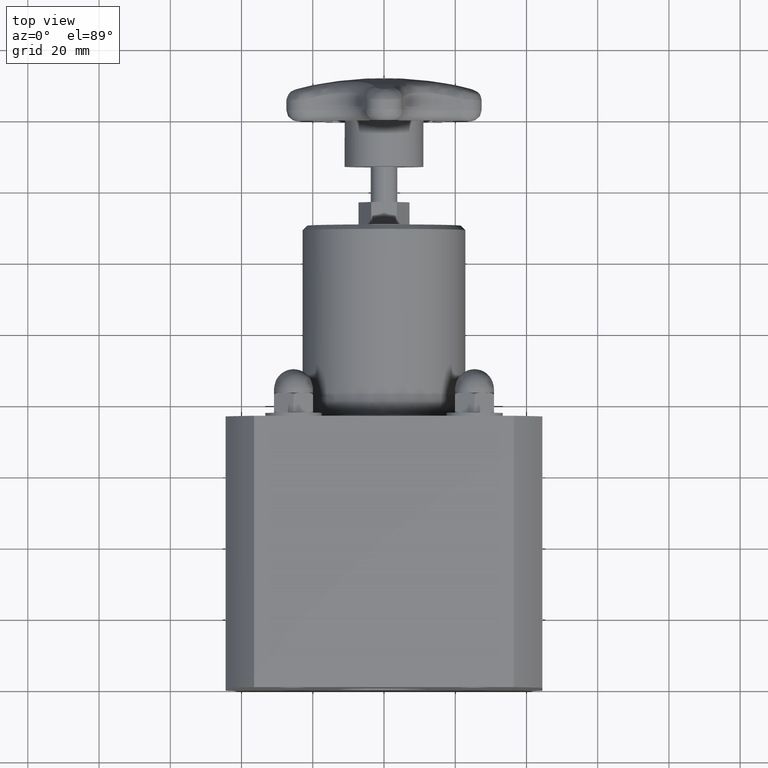
[diagram: clean part render]
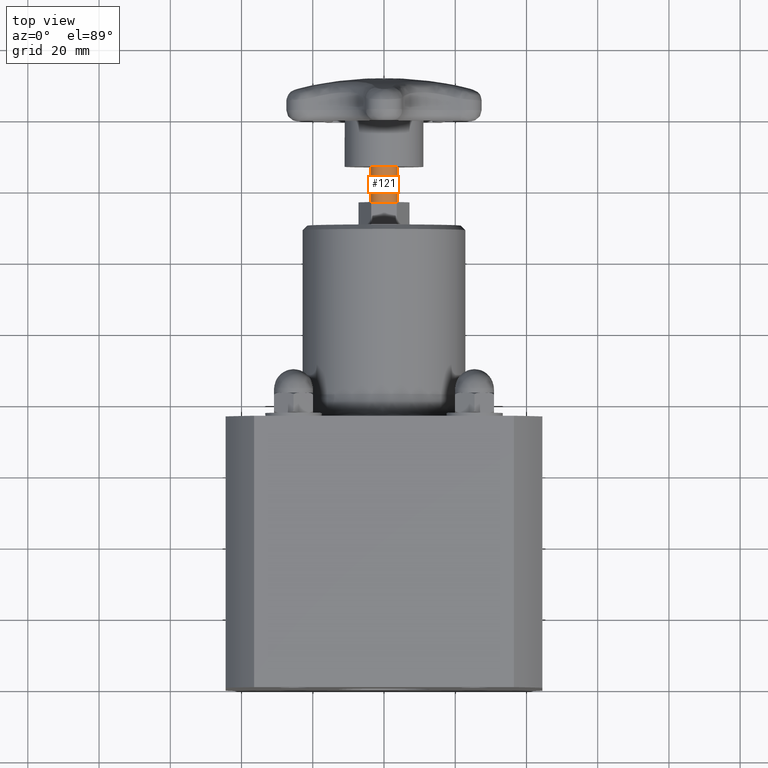
[diagram: same view with one face highlighted and labeled with its STEP entity id]
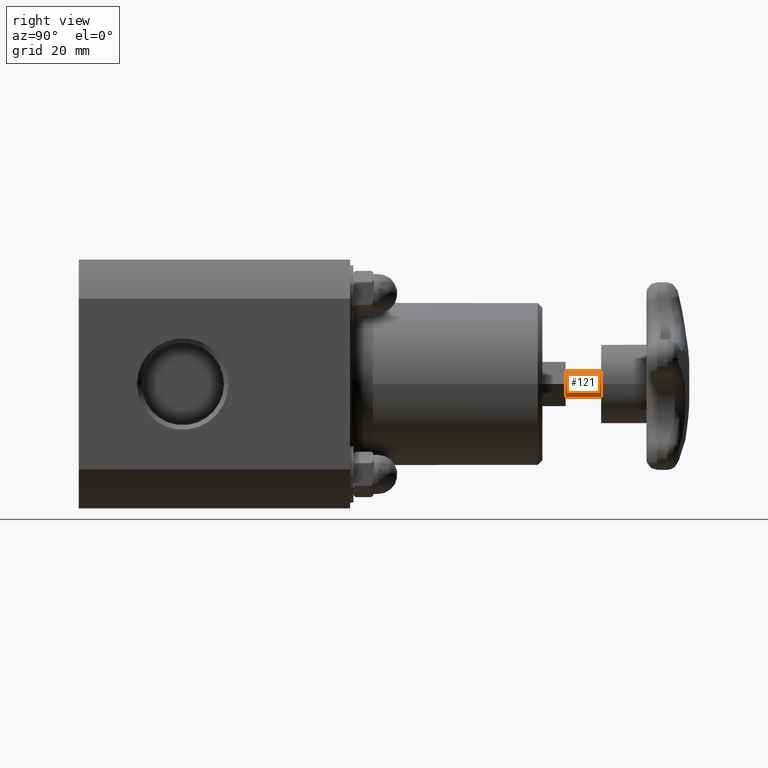
[diagram: same view with one face highlighted and labeled with its STEP entity id]
A machine part, top view. The second image highlights one B-rep face of the part: STEP entity #121.
A second angle (right view) of the same face is appended — the face is thin or edge-on in the first view.
In plain terms, the highlighted cylindrical surface (bore or boss wall) has radius 3.7211 mm, axis along (-0, 1, 0).
Its self-contained STEP definition (entity closure, byte-faithful):
#90=CARTESIAN_POINT('',(-0.146500000000004,5.775500000000000,-3.716724E-017));
#91=VERTEX_POINT('',#90);
#92=CARTESIAN_POINT('',(-3.879628E-015,5.775500000000000,-5.510831E-017));
#93=DIRECTION('',(0.0,1.0,0.0));
#94=DIRECTION('',(1.0,0.0,0.0));
#95=AXIS2_PLACEMENT_3D('',#92,#93,#94);
#96=CIRCLE('',#95,0.146500000000000);
#97=EDGE_CURVE('',#91,#91,#96,.T.);
#102=CARTESIAN_POINT('',(-2.879562E-015,4.568000000000001,-5.510831E-017));
#103=DIRECTION('',(-8.282118E-016,1.0,7.770505E-034));
#104=DIRECTION('',(1.0,0.0,0.0));
#105=AXIS2_PLACEMENT_3D('',#102,#103,#104);
#106=CYLINDRICAL_SURFACE('',#105,0.146500000000000);
#107=CARTESIAN_POINT('',(-0.146500000000004,5.383000000000000,-7.304939E-017));
#108=VERTEX_POINT('',#107);
#109=CARTESIAN_POINT('',(-3.554555E-015,5.383000000000000,-5.510831E-017));
#110=DIRECTION('',(0.0,-1.0,0.0));
#111=DIRECTION('',(1.0,0.0,0.0));
#112=AXIS2_PLACEMENT_3D('',#109,#110,#111);
#113=CIRCLE('',#112,0.146500000000000);
#114=EDGE_CURVE('',#108,#108,#113,.T.);
#115=ORIENTED_EDGE('',*,*,#114,.F.);
#116=EDGE_LOOP('',(#115));
#117=FACE_OUTER_BOUND('',#116,.T.);
#118=ORIENTED_EDGE('',*,*,#97,.F.);
#119=EDGE_LOOP('',(#118));
#120=FACE_BOUND('',#119,.T.);
#121=ADVANCED_FACE('',(#117,#120),#106,.T.);